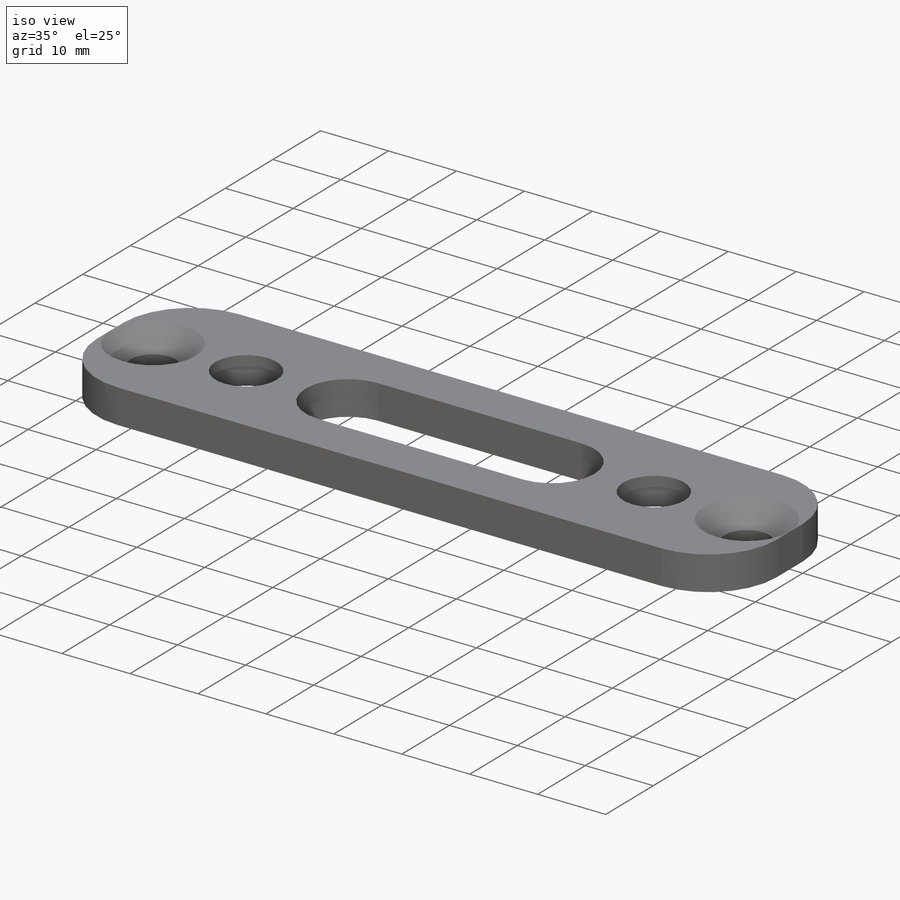
[diagram: iso view]
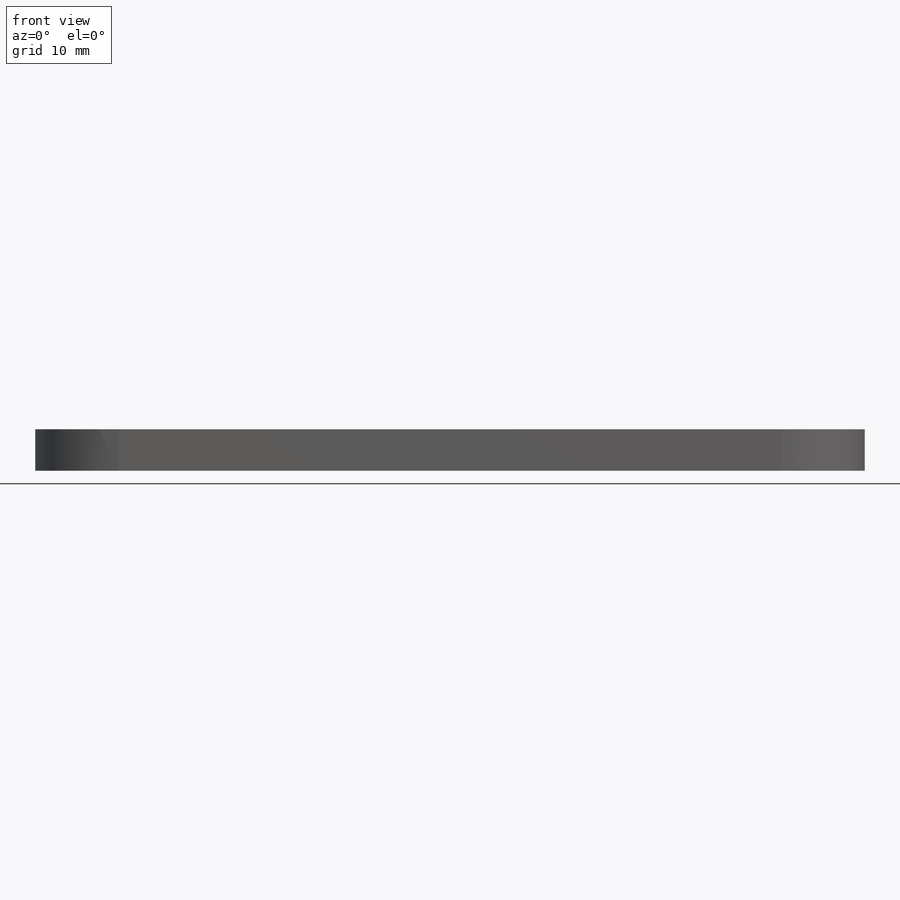
[diagram: front view]
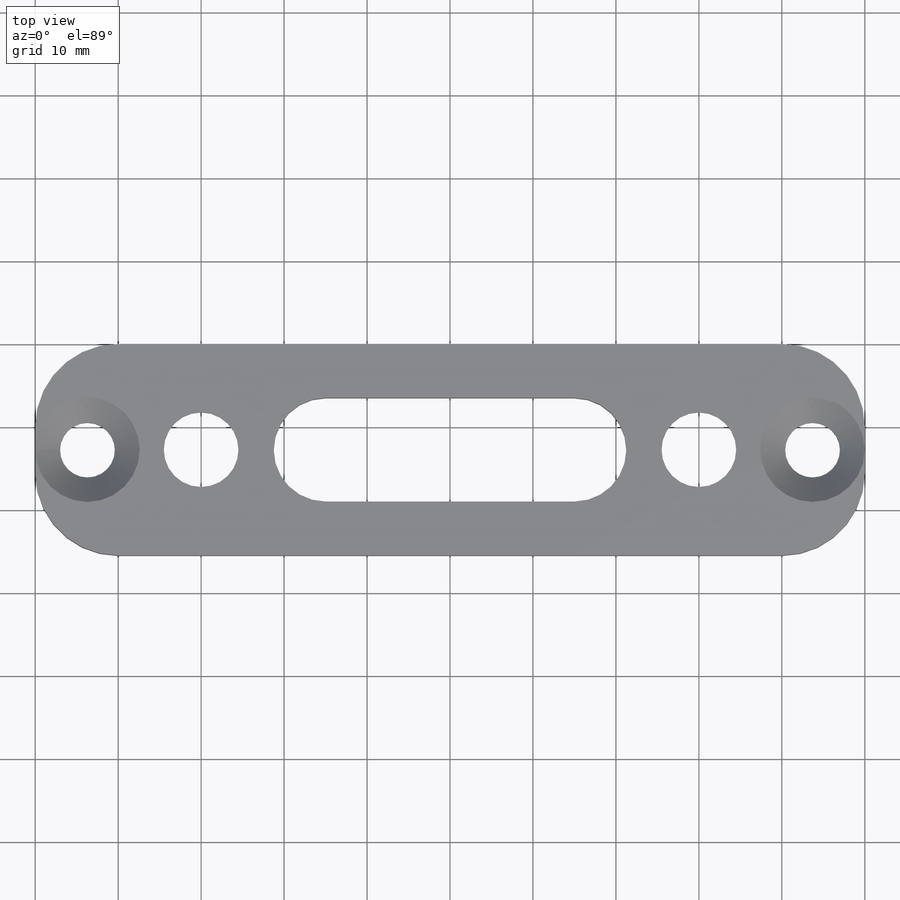
[diagram: top view]
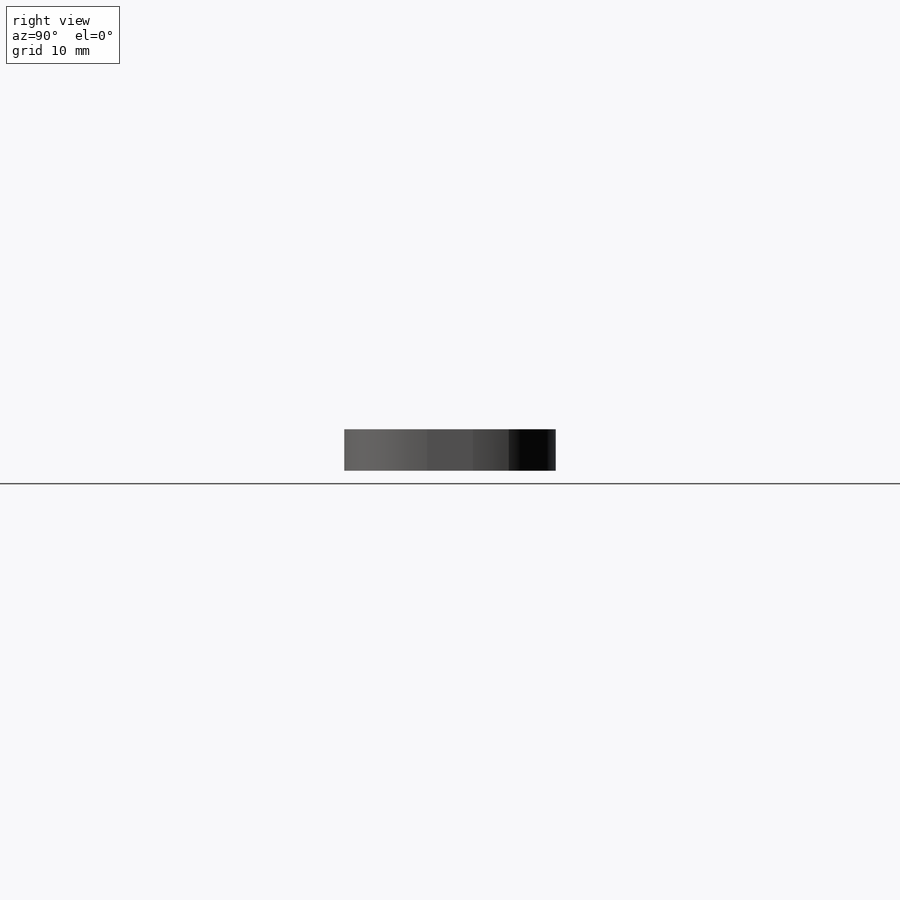
[diagram: right view]
SOLIDWORKS PART (.sldprt)
format: sldprt  version: not decoded by parser v0  size: 258,048 bytes
history: native  units: mm
features: sketch x9, cut_extrude x6, material x1, extrude x1, hole x1, fillet x1 (+12 scaffold rows collapsed)
feature tree (31):
  scaffold x12  (default folders/planes/origin — collapsed)
  material  "Material <not specified>"
  sketch  "Sketch1"  dims[D1=100.0mm D2=7.0mm]
  extrude  "Boss-Extrude1"  Depth=25.5mm
  sketch  "Sketch2"  dims[D5=~4.504675mm D1=6.3mm D2=6.3mm D3=20.0mm D4=20.0mm]
  hole  "CSK for M6 Countersunk Flat Head Screw1"  Diameter=6.6mm Depth=7mm
  sketch  "Sketch4"
  sketch  "Sketch3"  dims[hole-wizard template sketch: 55 standard entries collapsed; hole parameters kept: c17.Thru Hole Depth=7.0mm c17.Near C'Sink Dia.=12.6mm c17.D4=~3.666174mm c17.Near C'Sink Angle=90.0deg]
  cut_extrude  "Cut-Extrude2"  Depth=3mm
  cut_extrude  "Cut-Extrude3"  [1 undecoded]
  sketch  "Sketch2<4>"  dims[D1=3.0mm]
  sketch  "Sketch6"  dims[D1=2.0mm D2=2.0mm]
  cut_extrude  "Cut-Extrude4"  Depth=1.5mm
  sketch  "Sketch9"
  cut_extrude  "Cut-Extrude5"  [1 undecoded]
  sketch  "Sketch10"
  cut_extrude  "Cut-Extrude6"  Depth=2mm
  sketch  "Sketch11"  dims[D1=30.0mm D2=12.5mm]
  cut_extrude  "Cut-Extrude7"  [1 undecoded]
  fillet  "Fillet4"  Radius=10mm
decode coverage: 12 of 18 modeling features carry decoded parameters
note: ~ marks probable driven/reference dimensions
note: 3 parameter values undecoded
summary: no parameter record found for 3 features
note: suppression state not decoded; provenance and decode notes live in map.json
